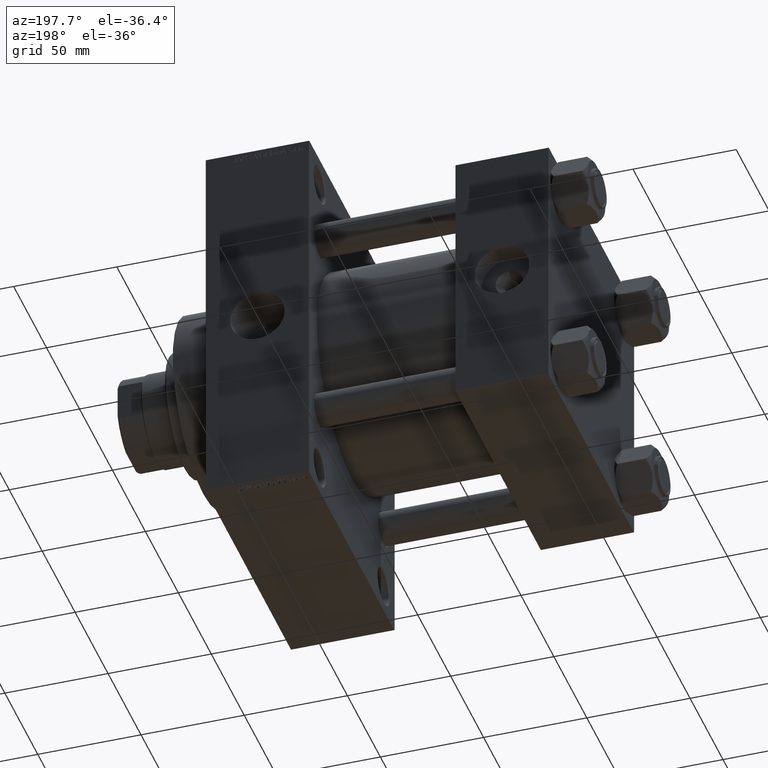
[diagram: clean part render]
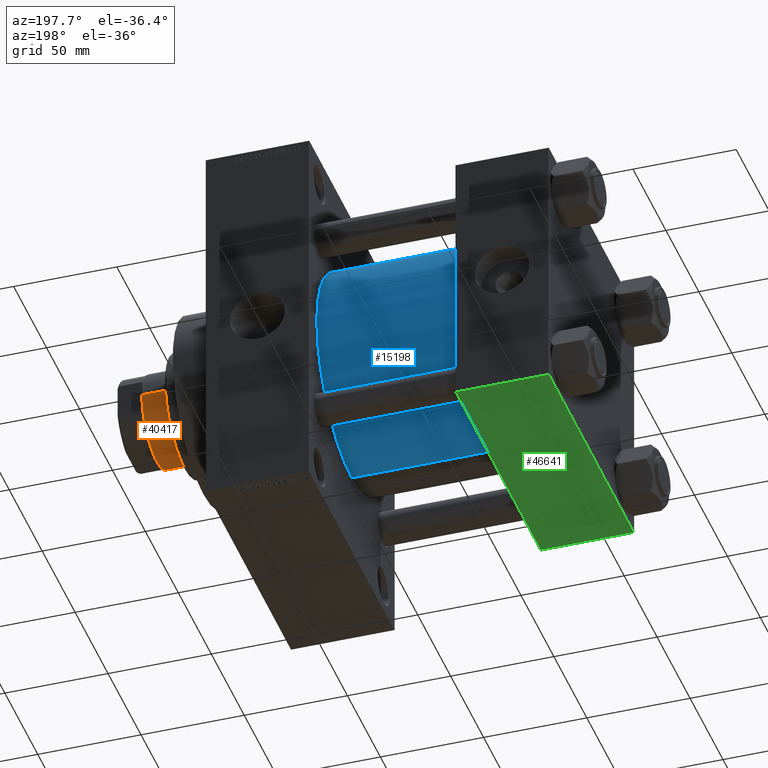
[diagram: same view with three faces highlighted in distinct colors, each labeled with its STEP entity id]
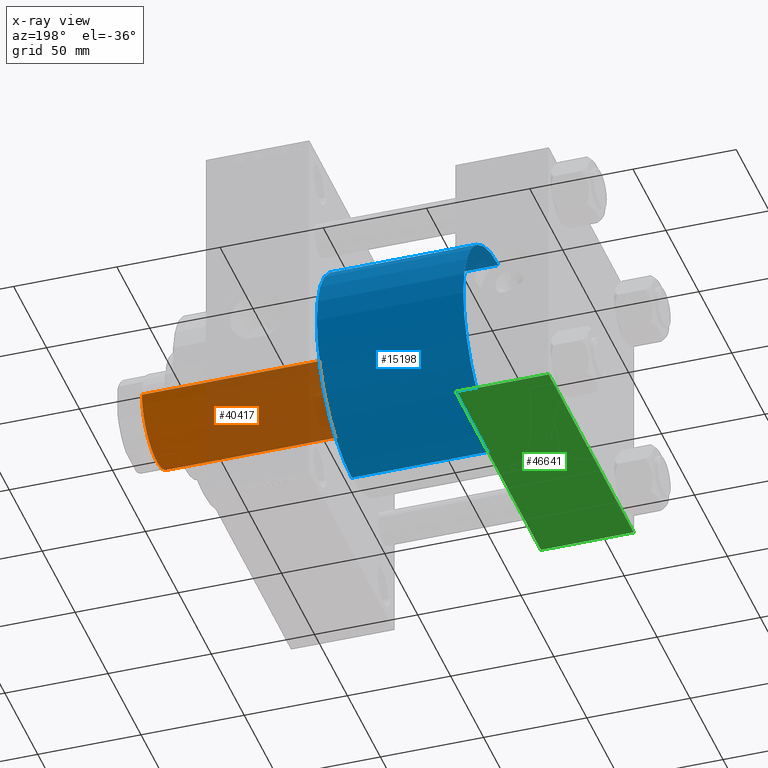
[diagram: x-ray of the same camera — body ghosted, the three highlighted faces saturated]
A machine part, auxiliary view with three faces highlighted in distinct colors.
The next image is the same camera in x-ray (body ghosted, the three faces saturated) — at least one of them is partly hidden behind the body in this view.
Their STEP definitions:

[orange] entity #40417 — the highlighted cylindrical surface (partial cylindrical patch) has radius 22.5 mm, axis along (-1, 0, 0).
#1396 = CARTESIAN_POINT ( 'NONE',  ( 22.50000000000000355, 2.755455298081545172E-15, 51.00000000000000000 ) ) ;
#1722 = DIRECTION ( 'NONE',  ( -0.000000000000000000, -0.000000000000000000, -1.000000000000000000 ) ) ;
#4995 = FACE_OUTER_BOUND ( 'NONE', #36295, .T. ) ;
#5523 = LINE ( 'NONE', #40008, #45423 ) ;
#6334 = CIRCLE ( 'NONE', #42531, 22.50000000000000355 ) ;
#6543 = CARTESIAN_POINT ( 'NONE',  ( 0.000000000000000000, 0.000000000000000000, 51.00000000000000000 ) ) ;
#9016 = CYLINDRICAL_SURFACE ( 'NONE', #44175, 22.50000000000000355 ) ;
#9707 = VERTEX_POINT ( 'NONE', #1396 ) ;
#12717 = ORIENTED_EDGE ( 'NONE', *, *, #13742, .T. ) ;
#13037 = CARTESIAN_POINT ( 'NONE',  ( 22.50000000000000355, 2.755455298081545172E-15, 166.0000000000000000 ) ) ;
#13742 = EDGE_CURVE ( 'NONE', #30675, #38014, #6334, .T. ) ;
#14353 = VERTEX_POINT ( 'NONE', #47917 ) ;
#14822 = DIRECTION ( 'NONE',  ( 0.000000000000000000, 0.000000000000000000, 1.000000000000000000 ) ) ;
#20959 = VECTOR ( 'NONE', #28660, 1000.000000000000000 ) ;
#24620 = DIRECTION ( 'NONE',  ( -1.000000000000000000, 0.000000000000000000, 0.000000000000000000 ) ) ;
#27265 = EDGE_CURVE ( 'NONE', #30675, #14353, #5523, .T. ) ;
#28660 = DIRECTION ( 'NONE',  ( -0.000000000000000000, -0.000000000000000000, -1.000000000000000000 ) ) ;
#29672 = DIRECTION ( 'NONE',  ( -0.000000000000000000, -0.000000000000000000, -1.000000000000000000 ) ) ;
#29685 = DIRECTION ( 'NONE',  ( 1.000000000000000000, 0.000000000000000000, 0.000000000000000000 ) ) ;
#30675 = VERTEX_POINT ( 'NONE', #41031 ) ;
#32812 = EDGE_CURVE ( 'NONE', #9707, #14353, #43216, .T. ) ;
#33209 = CARTESIAN_POINT ( 'NONE',  ( 0.000000000000000000, 0.000000000000000000, 165.4999999999999716 ) ) ;
#36295 = EDGE_LOOP ( 'NONE', ( #12717, #41343, #48847, #46931 ) ) ;
#38014 = VERTEX_POINT ( 'NONE', #43182 ) ;
#40008 = CARTESIAN_POINT ( 'NONE',  ( -22.50000000000000355, 0.000000000000000000, 166.0000000000000000 ) ) ;
#40417 = ADVANCED_FACE ( 'NONE', ( #4995 ), #9016, .T. ) ;
#40474 = LINE ( 'NONE', #13037, #20959 ) ;
#41031 = CARTESIAN_POINT ( 'NONE',  ( -22.50000000000000355, 0.000000000000000000, 165.4999999999999716 ) ) ;
#41343 = ORIENTED_EDGE ( 'NONE', *, *, #49585, .T. ) ;
#41502 = DIRECTION ( 'NONE',  ( 0.000000000000000000, 0.000000000000000000, -1.000000000000000000 ) ) ;
#42531 = AXIS2_PLACEMENT_3D ( 'NONE', #33209, #41502, #29685 ) ;
#43182 = CARTESIAN_POINT ( 'NONE',  ( 22.50000000000000355, 2.755455298081545172E-15, 165.4999999999999716 ) ) ;
#43216 = CIRCLE ( 'NONE', #48825, 22.50000000000000355 ) ;
#43288 = CARTESIAN_POINT ( 'NONE',  ( 0.000000000000000000, 0.000000000000000000, 166.0000000000000000 ) ) ;
#44175 = AXIS2_PLACEMENT_3D ( 'NONE', #43288, #1722, #24620 ) ;
#45423 = VECTOR ( 'NONE', #29672, 1000.000000000000000 ) ;
#46931 = ORIENTED_EDGE ( 'NONE', *, *, #27265, .F. ) ;
#47917 = CARTESIAN_POINT ( 'NONE',  ( -22.50000000000000355, 0.000000000000000000, 51.00000000000000000 ) ) ;
#48581 = DIRECTION ( 'NONE',  ( 1.000000000000000000, 0.000000000000000000, 0.000000000000000000 ) ) ;
#48825 = AXIS2_PLACEMENT_3D ( 'NONE', #6543, #14822, #48581 ) ;
#48847 = ORIENTED_EDGE ( 'NONE', *, *, #32812, .T. ) ;
#49585 = EDGE_CURVE ( 'NONE', #38014, #9707, #40474, .T. ) ;

[blue] entity #15198 — the highlighted cylindrical surface (partial cylindrical patch) has radius 53 mm, axis along (-1, -0, -0).
#1252 = DIRECTION ( 'NONE',  ( -1.000000000000000000, -0.000000000000000000, -0.000000000000000000 ) ) ;
#1954 = CARTESIAN_POINT ( 'NONE',  ( 45.00000000000000000, -2.602085213965210642E-15, 53.00000000000000711 ) ) ;
#2597 = DIRECTION ( 'NONE',  ( -1.000000000000000000, -0.000000000000000000, -0.000000000000000000 ) ) ;
#4535 = CARTESIAN_POINT ( 'NONE',  ( 115.9999999999999858, -2.602085213965210642E-15, 53.00000000000000711 ) ) ;
#5982 = CARTESIAN_POINT ( 'NONE',  ( 45.00000000000000000, 3.888542821515762466E-15, -53.00000000000000711 ) ) ;
#6816 = VECTOR ( 'NONE', #10041, 1000.000000000000000 ) ;
#7670 = EDGE_CURVE ( 'NONE', #27767, #45051, #13816, .T. ) ;
#8294 = ORIENTED_EDGE ( 'NONE', *, *, #7670, .T. ) ;
#8620 = DIRECTION ( 'NONE',  ( 0.000000000000000000, 0.000000000000000000, 1.000000000000000000 ) ) ;
#10041 = DIRECTION ( 'NONE',  ( -1.000000000000000000, -0.000000000000000000, -0.000000000000000000 ) ) ;
#11026 = CARTESIAN_POINT ( 'NONE',  ( 115.9999999999999858, 3.888542821515762466E-15, -53.00000000000000711 ) ) ;
#11494 = CARTESIAN_POINT ( 'NONE',  ( 115.9999999999999858, -2.602085213965210642E-15, 53.00000000000000711 ) ) ;
#12153 = CARTESIAN_POINT ( 'NONE',  ( 45.00000000000000000, -2.602085213965210642E-15, 0.000000000000000000 ) ) ;
#12612 = CIRCLE ( 'NONE', #39133, 53.00000000000000711 ) ;
#13816 = LINE ( 'NONE', #11026, #6816 ) ;
#14416 = DIRECTION ( 'NONE',  ( 0.000000000000000000, 0.000000000000000000, 1.000000000000000000 ) ) ;
#15198 = ADVANCED_FACE ( 'NONE', ( #48410 ), #40366, .T. ) ;
#17023 = CARTESIAN_POINT ( 'NONE',  ( 115.9999999999999858, 3.888542821515762466E-15, -53.00000000000000711 ) ) ;
#19549 = CARTESIAN_POINT ( 'NONE',  ( 115.9999999999999858, -2.602085213965210642E-15, 0.000000000000000000 ) ) ;
#19802 = DIRECTION ( 'NONE',  ( 0.000000000000000000, 0.000000000000000000, -1.000000000000000000 ) ) ;
#23062 = EDGE_CURVE ( 'NONE', #40597, #44959, #39025, .T. ) ;
#24218 = DIRECTION ( 'NONE',  ( 1.000000000000000000, -0.000000000000000000, 0.000000000000000000 ) ) ;
#27767 = VERTEX_POINT ( 'NONE', #17023 ) ;
#28124 = DIRECTION ( 'NONE',  ( 1.000000000000000000, 0.000000000000000000, 0.000000000000000000 ) ) ;
#32052 = AXIS2_PLACEMENT_3D ( 'NONE', #19549, #28124, #19802 ) ;
#32375 = ORIENTED_EDGE ( 'NONE', *, *, #23062, .F. ) ;
#32416 = VECTOR ( 'NONE', #1252, 1000.000000000000000 ) ;
#34107 = EDGE_CURVE ( 'NONE', #45051, #44959, #12612, .T. ) ;
#34646 = AXIS2_PLACEMENT_3D ( 'NONE', #37084, #2597, #14416 ) ;
#37084 = CARTESIAN_POINT ( 'NONE',  ( 115.9999999999999858, -2.602085213965210642E-15, 0.000000000000000000 ) ) ;
#39025 = LINE ( 'NONE', #4535, #32416 ) ;
#39133 = AXIS2_PLACEMENT_3D ( 'NONE', #12153, #24218, #8620 ) ;
#40366 = CYLINDRICAL_SURFACE ( 'NONE', #34646, 53.00000000000000711 ) ;
#40597 = VERTEX_POINT ( 'NONE', #11494 ) ;
#41196 = ORIENTED_EDGE ( 'NONE', *, *, #34107, .T. ) ;
#42266 = ORIENTED_EDGE ( 'NONE', *, *, #44496, .F. ) ;
#42508 = CIRCLE ( 'NONE', #32052, 53.00000000000000711 ) ;
#44496 = EDGE_CURVE ( 'NONE', #27767, #40597, #42508, .T. ) ;
#44959 = VERTEX_POINT ( 'NONE', #1954 ) ;
#45051 = VERTEX_POINT ( 'NONE', #5982 ) ;
#47555 = EDGE_LOOP ( 'NONE', ( #42266, #8294, #41196, #32375 ) ) ;
#48410 = FACE_OUTER_BOUND ( 'NONE', #47555, .T. ) ;

[green] entity #46641 — the highlighted planar face has unit normal (0, 0, -1).
#851 = ORIENTED_EDGE ( 'NONE', *, *, #9977, .T. ) ;
#1083 = LINE ( 'NONE', #9382, #17558 ) ;
#2939 = CARTESIAN_POINT ( 'NONE',  ( 0.000000000000000000, -64.49999999999994316, -65.00000000000000000 ) ) ;
#5111 = DIRECTION ( 'NONE',  ( 0.000000000000000000, -1.000000000000000000, -1.067522139062650425E-16 ) ) ;
#9382 = CARTESIAN_POINT ( 'NONE',  ( 45.00000000000000000, 65.00000000000000000, -64.99999999999998579 ) ) ;
#9977 = EDGE_CURVE ( 'NONE', #47490, #12729, #14133, .T. ) ;
#10310 = VERTEX_POINT ( 'NONE', #2939 ) ;
#10622 = CARTESIAN_POINT ( 'NONE',  ( 45.00000000000000000, 65.00000000000000000, -64.99999999999998579 ) ) ;
#12335 = CARTESIAN_POINT ( 'NONE',  ( 45.00000000000000000, 64.49999999999997158, -64.99999999999998579 ) ) ;
#12729 = VERTEX_POINT ( 'NONE', #12335 ) ;
#14106 = ORIENTED_EDGE ( 'NONE', *, *, #41500, .T. ) ;
#14133 = LINE ( 'NONE', #22668, #45521 ) ;
#14620 = DIRECTION ( 'NONE',  ( 1.000000000000000000, 0.000000000000000000, 0.000000000000000000 ) ) ;
#14637 = PLANE ( 'NONE',  #16835 ) ;
#15125 = CARTESIAN_POINT ( 'NONE',  ( 45.00000000000000000, -64.49999999999994316, -65.00000000000000000 ) ) ;
#16480 = CARTESIAN_POINT ( 'NONE',  ( 0.000000000000000000, 64.49999999999997158, -64.99999999999998579 ) ) ;
#16835 = AXIS2_PLACEMENT_3D ( 'NONE', #10622, #33773, #17434 ) ;
#17434 = DIRECTION ( 'NONE',  ( 0.000000000000000000, 1.000000000000000000, 1.067522139062650548E-16 ) ) ;
#17447 = LINE ( 'NONE', #17689, #28512 ) ;
#17558 = VECTOR ( 'NONE', #5111, 1000.000000000000000 ) ;
#17689 = CARTESIAN_POINT ( 'NONE',  ( 0.000000000000000000, 65.00000000000000000, -64.99999999999998579 ) ) ;
#22668 = CARTESIAN_POINT ( 'NONE',  ( 45.00000000000000000, 64.49999999999997158, -64.99999999999998579 ) ) ;
#23203 = VECTOR ( 'NONE', #48586, 1000.000000000000000 ) ;
#24444 = CARTESIAN_POINT ( 'NONE',  ( 0.000000000000000000, -64.49999999999994316, -65.00000000000000000 ) ) ;
#26038 = EDGE_CURVE ( 'NONE', #47490, #10310, #17447, .T. ) ;
#27081 = EDGE_LOOP ( 'NONE', ( #28611, #851, #45295, #14106 ) ) ;
#28240 = LINE ( 'NONE', #24444, #23203 ) ;
#28512 = VECTOR ( 'NONE', #32816, 1000.000000000000000 ) ;
#28611 = ORIENTED_EDGE ( 'NONE', *, *, #26038, .F. ) ;
#32816 = DIRECTION ( 'NONE',  ( 0.000000000000000000, -1.000000000000000000, -1.067522139062650425E-16 ) ) ;
#33773 = DIRECTION ( 'NONE',  ( 0.000000000000000000, 1.067522139062650548E-16, -1.000000000000000000 ) ) ;
#36216 = VERTEX_POINT ( 'NONE', #15125 ) ;
#41500 = EDGE_CURVE ( 'NONE', #36216, #10310, #28240, .T. ) ;
#45121 = FACE_OUTER_BOUND ( 'NONE', #27081, .T. ) ;
#45295 = ORIENTED_EDGE ( 'NONE', *, *, #45414, .T. ) ;
#45414 = EDGE_CURVE ( 'NONE', #12729, #36216, #1083, .T. ) ;
#45521 = VECTOR ( 'NONE', #14620, 1000.000000000000000 ) ;
#46641 = ADVANCED_FACE ( 'NONE', ( #45121 ), #14637, .T. ) ;
#47490 = VERTEX_POINT ( 'NONE', #16480 ) ;
#48586 = DIRECTION ( 'NONE',  ( -1.000000000000000000, 0.000000000000000000, 0.000000000000000000 ) ) ;